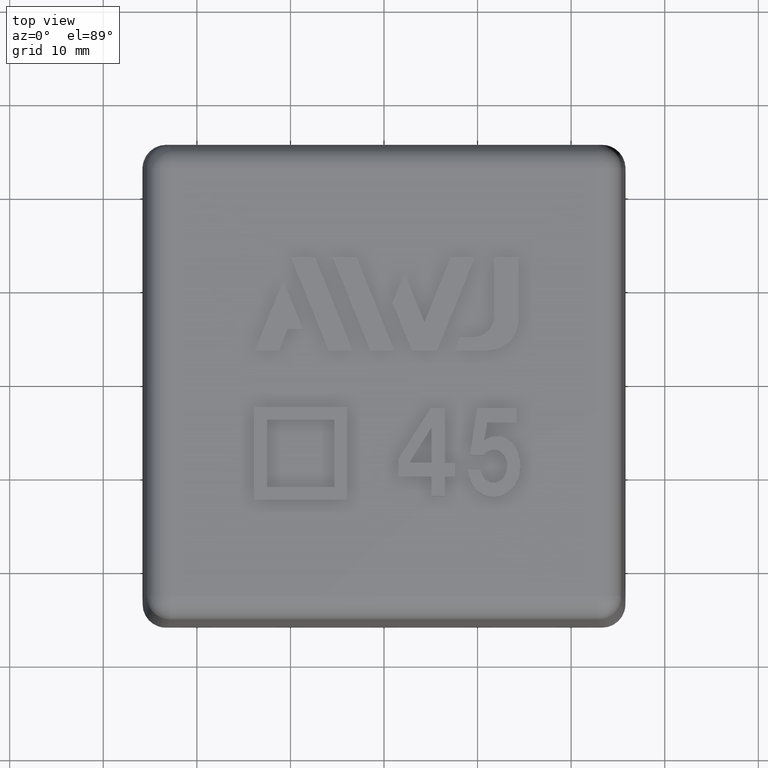
[diagram: clean part render]
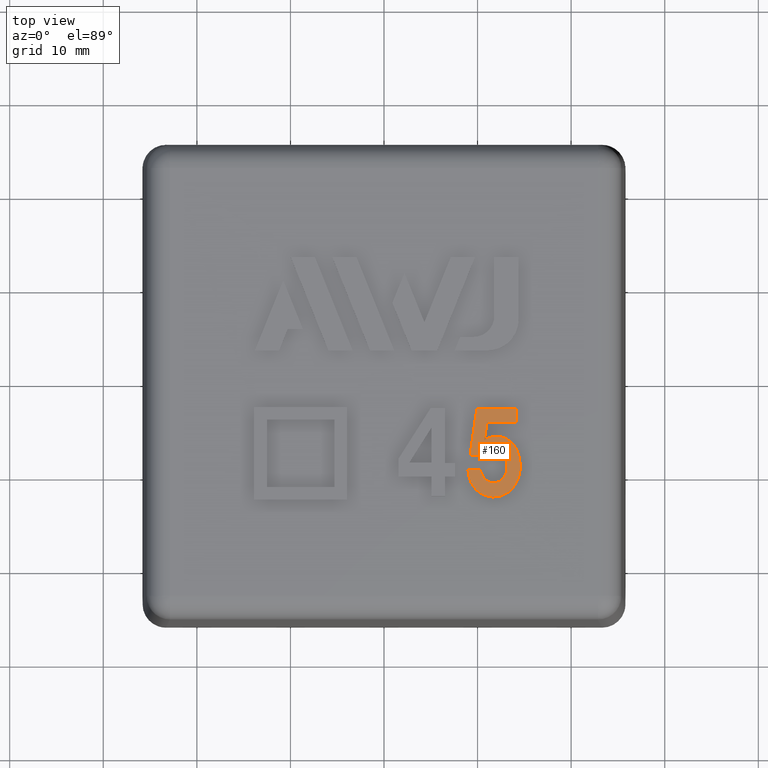
[diagram: same view with one face highlighted and labeled with its STEP entity id]
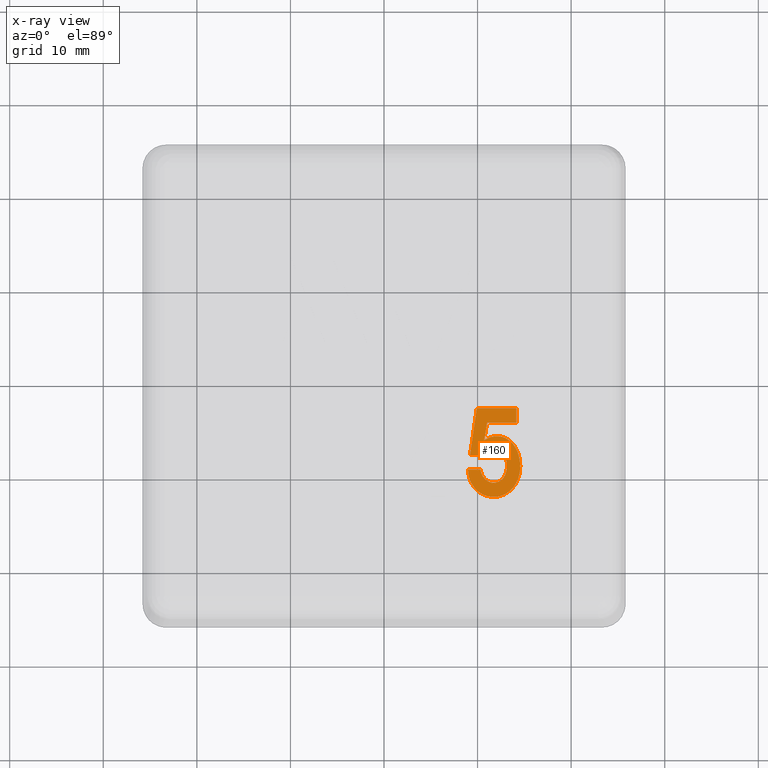
[diagram: x-ray of the same camera — body ghosted, the highlighted face saturated]
A machine part, top view. The second image highlights one B-rep face of the part: STEP entity #160.
The next image is the same camera in x-ray: the body ghosted, the highlighted face saturated — about 0% of this face is hidden behind the body in this view.
In plain terms, the highlighted planar face has unit normal (0, 0, 1).
Its self-contained STEP definition (entity closure, byte-faithful):
#160 = ADVANCED_FACE( '', ( #350 ), #351, .T. );
#350 = FACE_OUTER_BOUND( '', #549, .T. );
#351 = PLANE( '', #550 );
#549 = EDGE_LOOP( '', ( #1251, #1252, #1253, #1254, #1255, #1256, #1257, #1258, #1259, #1260 ) );
#550 = AXIS2_PLACEMENT_3D( '', #1261, #1262, #1263 );
#1251 = ORIENTED_EDGE( '', *, *, #1390, .F. );
#1252 = ORIENTED_EDGE( '', *, *, #1388, .F. );
#1253 = ORIENTED_EDGE( '', *, *, #1386, .F. );
#1254 = ORIENTED_EDGE( '', *, *, #1539, .F. );
#1255 = ORIENTED_EDGE( '', *, *, #1540, .F. );
#1256 = ORIENTED_EDGE( '', *, *, #1541, .F. );
#1257 = ORIENTED_EDGE( '', *, *, #1542, .F. );
#1258 = ORIENTED_EDGE( '', *, *, #1543, .F. );
#1259 = ORIENTED_EDGE( '', *, *, #1544, .F. );
#1260 = ORIENTED_EDGE( '', *, *, #1545, .F. );
#1261 = CARTESIAN_POINT( '', ( 9.16971526052024, -10.4781458671067, 28.0000000000000 ) );
#1262 = DIRECTION( '', ( 0.000000000000000, 0.000000000000000, 1.00000000000000 ) );
#1263 = DIRECTION( '', ( 0.000000000000000, -1.00000000000000, 0.000000000000000 ) );
#1386 = EDGE_CURVE( '', #1674, #1676, #1677, .T. );
#1388 = EDGE_CURVE( '', #1676, #1679, #1680, .T. );
#1390 = EDGE_CURVE( '', #1679, #1682, #1683, .T. );
#1539 = EDGE_CURVE( '', #1909, #1674, #1910, .T. );
#1540 = EDGE_CURVE( '', #1911, #1909, #1912, .T. );
#1541 = EDGE_CURVE( '', #1913, #1911, #1914, .T. );
#1542 = EDGE_CURVE( '', #1915, #1913, #1916, .T. );
#1543 = EDGE_CURVE( '', #1917, #1915, #1918, .T. );
#1544 = EDGE_CURVE( '', #1919, #1917, #1920, .T. );
#1545 = EDGE_CURVE( '', #1682, #1919, #1921, .T. );
#1674 = VERTEX_POINT( '', #2154 );
#1676 = VERTEX_POINT( '', #2157 );
#1677 = B_SPLINE_CURVE_WITH_KNOTS( '', 2, ( #2158, #2159, #2160 ), .UNSPECIFIED., .F., .F., ( 3, 3 ), ( 13.0000000000000, 14.0000000000000 ), .UNSPECIFIED. );
#1679 = VERTEX_POINT( '', #2163 );
#1680 = B_SPLINE_CURVE_WITH_KNOTS( '', 2, ( #2164, #2165, #2166, #2167, #2168, #2169, #2170, #2171, #2172, #2173, #2174, #2175, #2176 ), .UNSPECIFIED., .F., .F., ( 3, 2, 2, 2, 2, 2, 3 ), ( 14.0000000000000, 15.0000000000000, 16.0000000000000, 17.0000000000000, 18.0000000000000, 19.0000000000000, 20.0000000000000 ), .UNSPECIFIED. );
#1682 = VERTEX_POINT( '', #2179 );
#1683 = B_SPLINE_CURVE_WITH_KNOTS( '', 2, ( #2180, #2181, #2182 ), .UNSPECIFIED., .F., .F., ( 3, 3 ), ( 0.000000000000000, 1.00000000000000 ), .UNSPECIFIED. );
#1909 = VERTEX_POINT( '', #2567 );
#1910 = B_SPLINE_CURVE_WITH_KNOTS( '', 2, ( #2568, #2569, #2570 ), .UNSPECIFIED., .F., .F., ( 3, 3 ), ( 12.0000000000000, 13.0000000000000 ), .UNSPECIFIED. );
#1911 = VERTEX_POINT( '', #2571 );
#1912 = B_SPLINE_CURVE_WITH_KNOTS( '', 2, ( #2572, #2573, #2574 ), .UNSPECIFIED., .F., .F., ( 3, 3 ), ( 11.0000000000000, 12.0000000000000 ), .UNSPECIFIED. );
#1913 = VERTEX_POINT( '', #2575 );
#1914 = B_SPLINE_CURVE_WITH_KNOTS( '', 2, ( #2576, #2577, #2578 ), .UNSPECIFIED., .F., .F., ( 3, 3 ), ( 10.0000000000000, 11.0000000000000 ), .UNSPECIFIED. );
#1915 = VERTEX_POINT( '', #2579 );
#1916 = B_SPLINE_CURVE_WITH_KNOTS( '', 2, ( #2580, #2581, #2582 ), .UNSPECIFIED., .F., .F., ( 3, 3 ), ( 9.00000000000000, 10.0000000000000 ), .UNSPECIFIED. );
#1917 = VERTEX_POINT( '', #2583 );
#1918 = B_SPLINE_CURVE_WITH_KNOTS( '', 2, ( #2584, #2585, #2586 ), .UNSPECIFIED., .F., .F., ( 3, 3 ), ( 8.00000000000000, 9.00000000000000 ), .UNSPECIFIED. );
#1919 = VERTEX_POINT( '', #2587 );
#1920 = B_SPLINE_CURVE_WITH_KNOTS( '', 2, ( #2588, #2589, #2590, #2591, #2592, #2593, #2594, #2595, #2596, #2597, #2598, #2599, #2600 ), .UNSPECIFIED., .F., .F., ( 3, 2, 2, 2, 2, 2, 3 ), ( 2.00000000000000, 3.00000000000000, 4.00000000000000, 5.00000000000000, 6.00000000000000, 7.00000000000000, 8.00000000000000 ), .UNSPECIFIED. );
#1921 = B_SPLINE_CURVE_WITH_KNOTS( '', 2, ( #2601, #2602, #2603 ), .UNSPECIFIED., .F., .F., ( 3, 3 ), ( 1.00000000000000, 2.00000000000000 ), .UNSPECIFIED. );
#2154 = CARTESIAN_POINT( '', ( 11.0144284090908, -4.39537272727275, 28.0000000000000 ) );
#2157 = CARTESIAN_POINT( '', ( 10.6962465909090, -6.25900909090911, 28.0000000000000 ) );
#2158 = CARTESIAN_POINT( '', ( 11.0144284090908, -4.39537272727275, 28.0000000000000 ) );
#2159 = CARTESIAN_POINT( '', ( 10.8553374999999, -5.32719090909093, 28.0000000000000 ) );
#2160 = CARTESIAN_POINT( '', ( 10.6962465909090, -6.25900909090911, 28.0000000000000 ) );
#2163 = CARTESIAN_POINT( '', ( 9.68103036026299, -11.3628289229724, 28.0000000000000 ) );
#2164 = CARTESIAN_POINT( '', ( 10.6962465909090, -6.25900909090911, 28.0000000000000 ) );
#2165 = CARTESIAN_POINT( '', ( 12.1053374999999, -5.39537272727275, 28.0000000000000 ) );
#2166 = CARTESIAN_POINT( '', ( 13.2853027576722, -6.21621812391432, 28.0000000000000 ) );
#2167 = CARTESIAN_POINT( '', ( 14.1962465909090, -6.84991818181820, 28.0000000000000 ) );
#2168 = CARTESIAN_POINT( '', ( 14.4689738636363, -8.16810000000002, 28.0000000000000 ) );
#2169 = CARTESIAN_POINT( '', ( 14.7417011363636, -9.48628181818183, 28.0000000000000 ) );
#2170 = CARTESIAN_POINT( '', ( 14.2183250208873, -10.6327247377964, 28.0000000000000 ) );
#2171 = CARTESIAN_POINT( '', ( 13.7871556818181, -11.5771909090909, 28.0000000000000 ) );
#2172 = CARTESIAN_POINT( '', ( 12.9190264122437, -12.0229870204940, 28.0000000000000 ) );
#2173 = CARTESIAN_POINT( '', ( 12.1053374999999, -12.4408272727273, 28.0000000000000 ) );
#2174 = CARTESIAN_POINT( '', ( 11.2399528846153, -12.2677503496504, 28.0000000000000 ) );
#2175 = CARTESIAN_POINT( '', ( 10.2871556818181, -12.0771909090909, 28.0000000000000 ) );
#2176 = CARTESIAN_POINT( '', ( 9.68103036026299, -11.3628289229724, 28.0000000000000 ) );
#2179 = CARTESIAN_POINT( '', ( 8.96897386363628, -9.39537272727274, 28.0000000000000 ) );
#2180 = CARTESIAN_POINT( '', ( 9.68103036026299, -11.3628289229724, 28.0000000000000 ) );
#2181 = CARTESIAN_POINT( '', ( 9.01442840909083, -10.5771909090909, 28.0000000000000 ) );
#2182 = CARTESIAN_POINT( '', ( 8.96897386363628, -9.39537272727274, 28.0000000000000 ) );
#2567 = CARTESIAN_POINT( '', ( 14.1507920454545, -4.39537272727275, 28.0000000000000 ) );
#2568 = CARTESIAN_POINT( '', ( 14.1507920454545, -4.39537272727275, 28.0000000000000 ) );
#2569 = CARTESIAN_POINT( '', ( 12.5826102272726, -4.39537272727275, 28.0000000000000 ) );
#2570 = CARTESIAN_POINT( '', ( 11.0144284090908, -4.39537272727275, 28.0000000000000 ) );
#2571 = CARTESIAN_POINT( '', ( 14.1507920454545, -2.84991818181821, 28.0000000000000 ) );
#2572 = CARTESIAN_POINT( '', ( 14.1507920454545, -2.84991818181821, 28.0000000000000 ) );
#2573 = CARTESIAN_POINT( '', ( 14.1507920454545, -3.62264545454548, 28.0000000000000 ) );
#2574 = CARTESIAN_POINT( '', ( 14.1507920454545, -4.39537272727275, 28.0000000000000 ) );
#2575 = CARTESIAN_POINT( '', ( 9.92351931818174, -2.84991818181821, 28.0000000000000 ) );
#2576 = CARTESIAN_POINT( '', ( 9.92351931818174, -2.84991818181821, 28.0000000000000 ) );
#2577 = CARTESIAN_POINT( '', ( 12.0371556818181, -2.84991818181821, 28.0000000000000 ) );
#2578 = CARTESIAN_POINT( '', ( 14.1507920454545, -2.84991818181821, 28.0000000000000 ) );
#2579 = CARTESIAN_POINT( '', ( 9.19624659090901, -7.84991818181820, 28.0000000000000 ) );
#2580 = CARTESIAN_POINT( '', ( 9.19624659090901, -7.84991818181820, 28.0000000000000 ) );
#2581 = CARTESIAN_POINT( '', ( 9.55988295454538, -5.34991818181820, 28.0000000000000 ) );
#2582 = CARTESIAN_POINT( '', ( 9.92351931818174, -2.84991818181821, 28.0000000000000 ) );
#2583 = CARTESIAN_POINT( '', ( 10.6053374999999, -7.84991818181820, 28.0000000000000 ) );
#2584 = CARTESIAN_POINT( '', ( 10.6053374999999, -7.84991818181820, 28.0000000000000 ) );
#2585 = CARTESIAN_POINT( '', ( 9.90079204545447, -7.84991818181820, 28.0000000000000 ) );
#2586 = CARTESIAN_POINT( '', ( 9.19624659090901, -7.84991818181820, 28.0000000000000 ) );
#2587 = CARTESIAN_POINT( '', ( 10.2871556818181, -9.39537272727274, 28.0000000000000 ) );
#2588 = CARTESIAN_POINT( '', ( 10.2871556818181, -9.39537272727274, 28.0000000000000 ) );
#2589 = CARTESIAN_POINT( '', ( 10.4235193181817, -10.1226454545455, 28.0000000000000 ) );
#2590 = CARTESIAN_POINT( '', ( 10.9321519516678, -10.5207057764041, 28.0000000000000 ) );
#2591 = CARTESIAN_POINT( '', ( 11.4689738636363, -10.9408272727273, 28.0000000000000 ) );
#2592 = CARTESIAN_POINT( '', ( 12.0190159157809, -10.7741478629865, 28.0000000000000 ) );
#2593 = CARTESIAN_POINT( '', ( 12.9689738636363, -10.4862818181818, 28.0000000000000 ) );
#2594 = CARTESIAN_POINT( '', ( 13.1245827830188, -9.35255969125216, 28.0000000000000 ) );
#2595 = CARTESIAN_POINT( '', ( 13.2871556818181, -8.16810000000002, 28.0000000000000 ) );
#2596 = CARTESIAN_POINT( '', ( 12.4689738636363, -7.53173636363638, 28.0000000000000 ) );
#2597 = CARTESIAN_POINT( '', ( 12.0598829545454, -7.21355454545456, 28.0000000000000 ) );
#2598 = CARTESIAN_POINT( '', ( 11.5144284090908, -7.30446363636366, 28.0000000000000 ) );
#2599 = CARTESIAN_POINT( '', ( 10.9689738636363, -7.39537272727275, 28.0000000000000 ) );
#2600 = CARTESIAN_POINT( '', ( 10.6053374999999, -7.84991818181820, 28.0000000000000 ) );
#2601 = CARTESIAN_POINT( '', ( 8.96897386363628, -9.39537272727274, 28.0000000000000 ) );
#2602 = CARTESIAN_POINT( '', ( 9.62806477272719, -9.39537272727274, 28.0000000000000 ) );
#2603 = CARTESIAN_POINT( '', ( 10.2871556818181, -9.39537272727274, 28.0000000000000 ) );